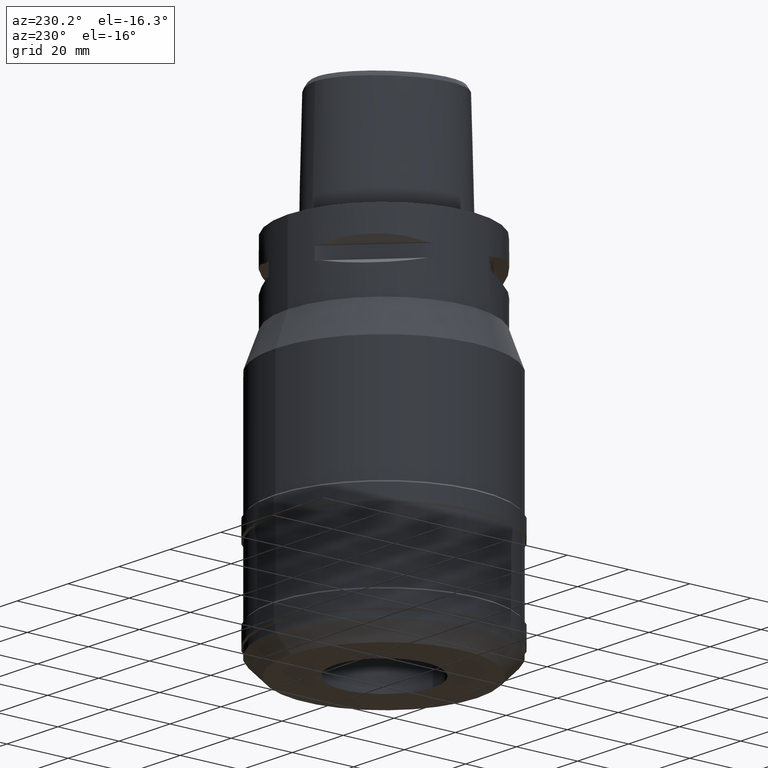
[diagram: clean part render]
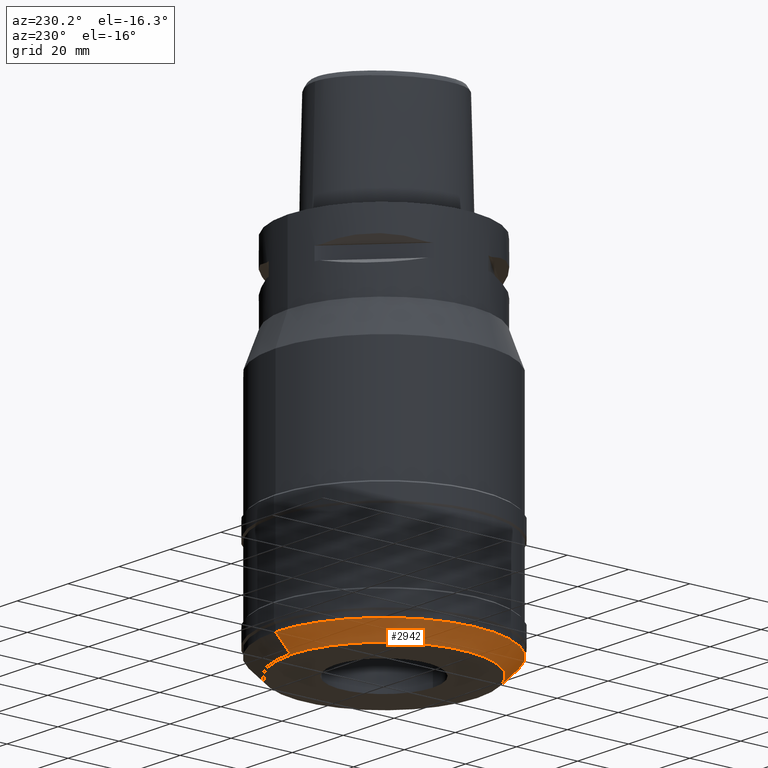
[diagram: same view with one face highlighted and labeled with its STEP entity id]
A machine part, auxiliary view. The second image highlights one B-rep face of the part: STEP entity #2942.
In plain terms, the highlighted conical surface has half-angle 45 deg.
Its self-contained STEP definition (entity closure, byte-faithful):
#842=DIRECTION('',(0.E0,-7.071067811865E-1,-7.071067811865E-1));
#843=VECTOR('',#842,7.071067811865E0);
#844=CARTESIAN_POINT('',(0.E0,3.55E1,-1.1E2));
#845=LINE('',#844,#843);
#857=CARTESIAN_POINT('',(0.E0,0.E0,-1.1E2));
#858=DIRECTION('',(0.E0,0.E0,1.E0));
#859=DIRECTION('',(0.E0,1.E0,0.E0));
#860=AXIS2_PLACEMENT_3D('',#857,#858,#859);
#865=DIRECTION('',(0.E0,7.071067811865E-1,-7.071067811865E-1));
#866=VECTOR('',#865,7.071067811865E0);
#867=CARTESIAN_POINT('',(0.E0,-3.55E1,-1.1E2));
#868=LINE('',#867,#866);
#880=CARTESIAN_POINT('',(0.E0,0.E0,-1.15E2));
#881=DIRECTION('',(0.E0,0.E0,1.E0));
#882=DIRECTION('',(0.E0,1.E0,0.E0));
#883=AXIS2_PLACEMENT_3D('',#880,#881,#882);
#1776=CARTESIAN_POINT('',(0.E0,3.55E1,-1.1E2));
#1777=VERTEX_POINT('',#1776);
#1778=CARTESIAN_POINT('',(0.E0,-3.55E1,-1.1E2));
#1779=VERTEX_POINT('',#1778);
#1780=CARTESIAN_POINT('',(0.E0,3.05E1,-1.15E2));
#1781=VERTEX_POINT('',#1780);
#1782=CARTESIAN_POINT('',(0.E0,-3.05E1,-1.15E2));
#1783=VERTEX_POINT('',#1782);
#2930=CARTESIAN_POINT('',(0.E0,0.E0,-1.125E2));
#2931=DIRECTION('',(0.E0,0.E0,1.E0));
#2932=DIRECTION('',(0.E0,1.E0,0.E0));
#2933=AXIS2_PLACEMENT_3D('',#2930,#2931,#2932);
#2934=CONICAL_SURFACE('',#2933,3.3E1,4.5E1);
#2935=ORIENTED_EDGE('',*,*,#2920,.F.);
#2936=ORIENTED_EDGE('',*,*,#2897,.T.);
#2937=ORIENTED_EDGE('',*,*,#2924,.T.);
#2939=ORIENTED_EDGE('',*,*,#2938,.F.);
#2940=EDGE_LOOP('',(#2935,#2936,#2937,#2939));
#2941=FACE_OUTER_BOUND('',#2940,.F.);
#861=CIRCLE('',#860,3.55E1);
#884=CIRCLE('',#883,3.05E1);
#2897=EDGE_CURVE('',#1777,#1779,#861,.T.);
#2920=EDGE_CURVE('',#1777,#1781,#845,.T.);
#2924=EDGE_CURVE('',#1779,#1783,#868,.T.);
#2938=EDGE_CURVE('',#1781,#1783,#884,.T.);
#2942=ADVANCED_FACE('',(#2941),#2934,.T.);